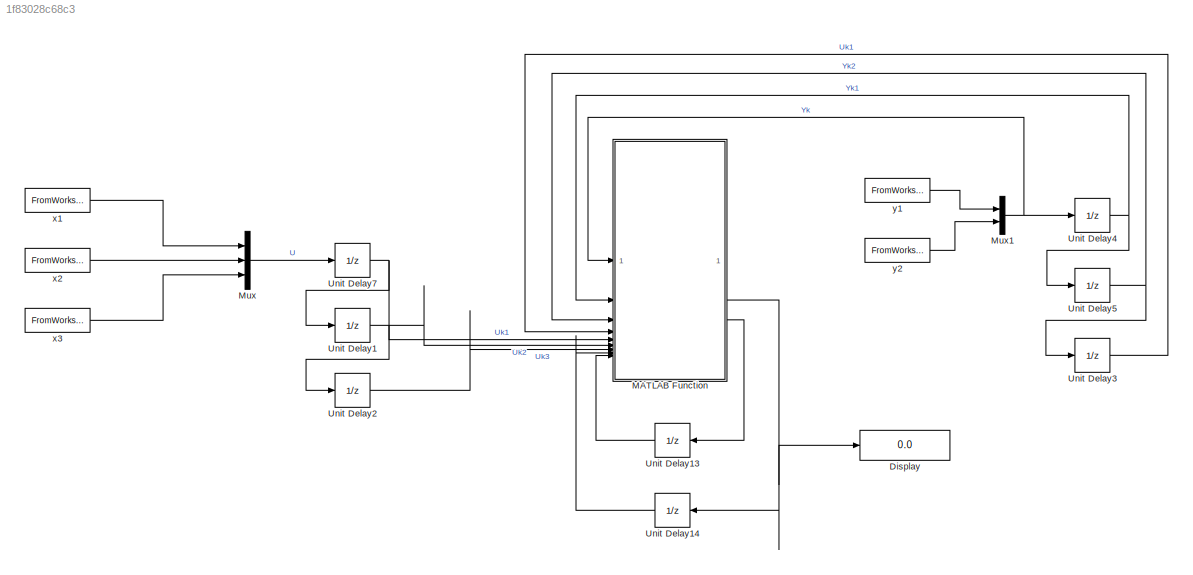
MODEL slx_1f83028c68c3
KIND model
CONFIG AbsTol = auto
CONFIG EnableMultiTasking = off
CONFIG FixedStep = auto
CONFIG MaxStep = auto
CONFIG MinStep = auto
CONFIG RelTol = 1e-3
CONFIG SampleTimeConstraint = Unconstrained
CONFIG SolverName = VariableStepAuto
CONFIG StartTime = 0.0
CONFIG StopTime = 4860
BLOCK [Display] Display
  Decimation = 1
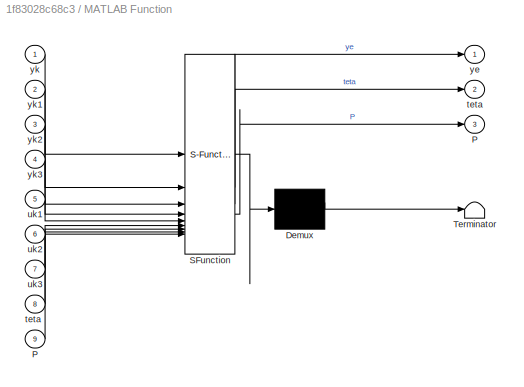
BLOCK [SubSystem] MATLAB Function
  ErrorFcn = Stateflow.Translate.translate
  PermitHierarchicalResolution = ExplicitOnly
  SFBlockType = MATLAB Function
  TreatAsAtomicUnit = on
BLOCK [Demux] MATLAB Function/ Demux 
  Outputs = 1
BLOCK [S-Function] MATLAB Function/ SFunction 
  EnableBusSupport = on
  FunctionName = sf_sfun
  PortCounts = [9 4]
  SFcnIsStateOwnerBlock = off
  SFunctionDeploymentMode = off
  Tag = Stateflow S-Function 2
BLOCK [Terminator] MATLAB Function/ Terminator 
BLOCK [Outport] MATLAB Function/P
  Port = 3
BLOCK [Inport] MATLAB Function/P 
  Port = 9
BLOCK [Outport] MATLAB Function/teta
  Port = 2
BLOCK [Inport] MATLAB Function/teta 
  Port = 8
BLOCK [Inport] MATLAB Function/uk1
  Port = 5
BLOCK [Inport] MATLAB Function/uk2
  Port = 6
BLOCK [Inport] MATLAB Function/uk3
  Port = 7
BLOCK [Outport] MATLAB Function/ye
BLOCK [Inport] MATLAB Function/yk
BLOCK [Inport] MATLAB Function/yk1
  Port = 2
BLOCK [Inport] MATLAB Function/yk2
  Port = 3
BLOCK [Inport] MATLAB Function/yk3
  Port = 4
BLOCK [Mux] Mux
  DisplayOption = bar
  Inputs = 3
BLOCK [Mux] Mux1
  DisplayOption = bar
  Inputs = 2
BLOCK [UnitDelay] Unit Delay1
  HasFrameUpgradeWarning = on
  SampleTime = -1
BLOCK [UnitDelay] Unit Delay13
  HasFrameUpgradeWarning = on
  InitialCondition = 15000000000000000000000000*eye(15)
  NameLocation = top
  SampleTime = -1
BLOCK [UnitDelay] Unit Delay14
  HasFrameUpgradeWarning = on
  InitialCondition = zeros(15,2)
  NameLocation = top
  SampleTime = -1
BLOCK [UnitDelay] Unit Delay2
  HasFrameUpgradeWarning = on
  SampleTime = -1
BLOCK [UnitDelay] Unit Delay3
  HasFrameUpgradeWarning = on
  SampleTime = -1
BLOCK [UnitDelay] Unit Delay4
  HasFrameUpgradeWarning = on
  SampleTime = -1
BLOCK [UnitDelay] Unit Delay5
  HasFrameUpgradeWarning = on
  SampleTime = -1
BLOCK [UnitDelay] Unit Delay7
  HasFrameUpgradeWarning = on
  SampleTime = -1
BLOCK [FromWorkspace] x1
  SampleTime = 1.4853
  VariableName = x1
BLOCK [FromWorkspace] x2
  SampleTime = 1.4853
  VariableName = x2
BLOCK [FromWorkspace] x3
  SampleTime = 1.4853
  VariableName = x3
BLOCK [FromWorkspace] y1
  SampleTime = 1.4853
  VariableName = y1
BLOCK [FromWorkspace] y2
  SampleTime = 1.4853
  VariableName = y2
NET MATLAB Function:2 -> Display:1, Unit Delay14:1
LINE MATLAB Function:3 -> Unit Delay13:1
NET Mux1:1 -> MATLAB Function:1, Unit Delay4:1
LINE Mux:1 -> Unit Delay7:1
LINE Unit Delay13:1 -> MATLAB Function:9
LINE Unit Delay14:1 -> MATLAB Function:8
NET Unit Delay1:1 -> MATLAB Function:6, Unit Delay2:1
LINE Unit Delay2:1 -> MATLAB Function:7
LINE Unit Delay3:1 -> MATLAB Function:4
NET Unit Delay4:1 -> MATLAB Function:2, Unit Delay5:1
NET Unit Delay5:1 -> MATLAB Function:3, Unit Delay3:1
NET Unit Delay7:1 -> MATLAB Function:5, Unit Delay1:1
LINE x1:1 -> Mux:1
LINE x2:1 -> Mux:2
LINE x3:1 -> Mux:3
LINE y1:1 -> Mux1:1
LINE y2:1 -> Mux1:2
note: NET lines group one-source signal fan-out (src -> all destinations, sorted); 1:1 wires keep LINE
CHART MATLAB Function states=1 transitions=1
  STATE_LABEL 'eML_blk_kernel()'
  STATE_LABEL "SCRIPT:\nfunction [ye,teta,P] = fcn(yk,yk1,yk2,yk3,uk1,uk2,uk3,teta,P)\n\n\nH=[-yk1,-yk2,-yk3,uk1,uk2,uk3]';\nye = H'*teta ;\nteta=teta+P*H/(1+H'*P*H)*(yk-ye);\nP=P-P*H/(H'*P*H+1)*H'*P;\n"
CHART  states=0 transitions=0
